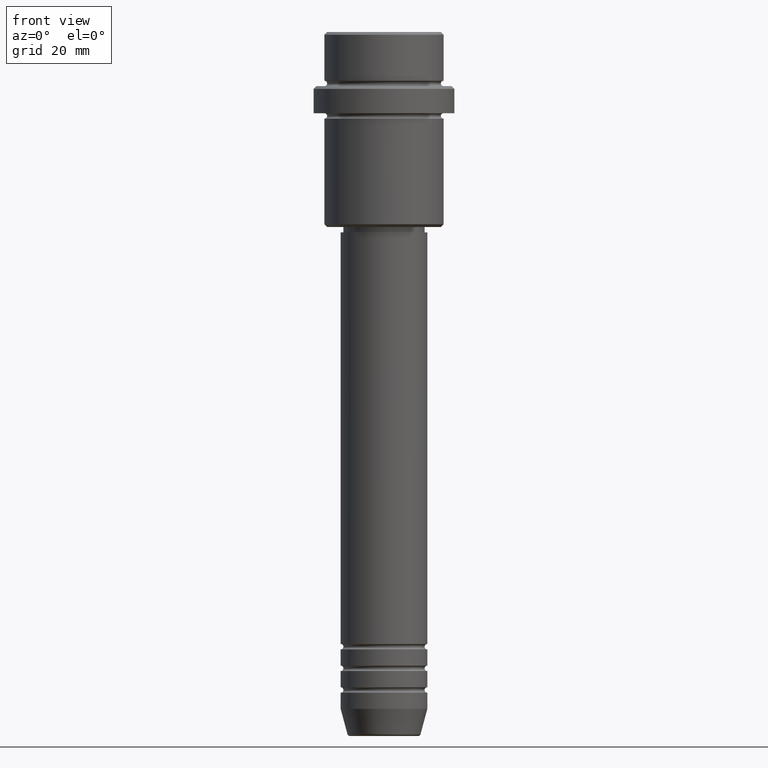
[diagram: clean part render]
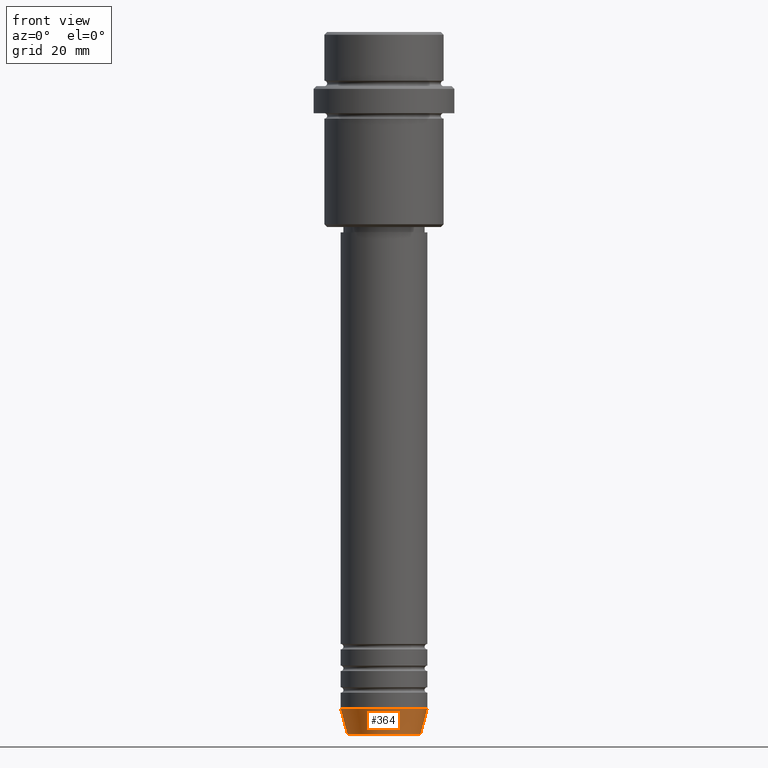
[diagram: same view with one face highlighted and labeled with its STEP entity id]
A machine part, front view. The second image highlights one B-rep face of the part: STEP entity #364.
In plain terms, the highlighted conical surface has half-angle 15 deg.
Its self-contained STEP definition (entity closure, byte-faithful):
#3 = EDGE_CURVE ( 'NONE', #440, #458, #1077, .T. ) ;
#8 = DIRECTION ( 'NONE',  ( 1.000000000000000000, 0.000000000000000000, 0.000000000000000000 ) ) ;
#38 = CIRCLE ( 'NONE', #1355, 6.759553456999433330 ) ;
#65 = FACE_OUTER_BOUND ( 'NONE', #418, .T. ) ;
#111 = DIRECTION ( 'NONE',  ( -0.000000000000000000, -0.000000000000000000, 1.000000000000000000 ) ) ;
#132 = DIRECTION ( 'NONE',  ( -0.000000000000000000, -0.000000000000000000, 1.000000000000000000 ) ) ;
#142 = CARTESIAN_POINT ( 'NONE',  ( -6.759553456999433330, 9.037619948979304241E-16, -129.6294095225512422 ) ) ;
#261 = AXIS2_PLACEMENT_3D ( 'NONE', #511, #1276, #289 ) ;
#275 = EDGE_CURVE ( 'NONE', #624, #1170, #1033, .T. ) ;
#289 = DIRECTION ( 'NONE',  ( 1.000000000000000000, 0.000000000000000000, 0.000000000000000000 ) ) ;
#364 = ADVANCED_FACE ( 'NONE', ( #65 ), #447, .T. ) ;
#414 = CARTESIAN_POINT ( 'NONE',  ( -8.000000000000000000, 9.797174393178825657E-16, -125.0000000000000000 ) ) ;
#418 = EDGE_LOOP ( 'NONE', ( #663, #739, #752, #1176 ) ) ;
#440 = VERTEX_POINT ( 'NONE', #142 ) ;
#447 = CONICAL_SURFACE ( 'NONE', #261, 8.000000000000000000, 0.2617993877991500740 ) ;
#458 = VERTEX_POINT ( 'NONE', #1304 ) ;
#511 = CARTESIAN_POINT ( 'NONE',  ( 0.000000000000000000, 0.000000000000000000, -125.0000000000000000 ) ) ;
#583 = AXIS2_PLACEMENT_3D ( 'NONE', #1090, #111, #8 ) ;
#593 = CARTESIAN_POINT ( 'NONE',  ( 8.000000000000000000, 0.000000000000000000, -125.0000000000000000 ) ) ;
#600 = CARTESIAN_POINT ( 'NONE',  ( 6.759553456999433330, 0.000000000000000000, -129.6294095225512422 ) ) ;
#624 = VERTEX_POINT ( 'NONE', #600 ) ;
#663 = ORIENTED_EDGE ( 'NONE', *, *, #3, .F. ) ;
#688 = CARTESIAN_POINT ( 'NONE',  ( 0.000000000000000000, 0.000000000000000000, -129.6294095225512422 ) ) ;
#703 = EDGE_CURVE ( 'NONE', #458, #1170, #816, .T. ) ;
#739 = ORIENTED_EDGE ( 'NONE', *, *, #1051, .T. ) ;
#752 = ORIENTED_EDGE ( 'NONE', *, *, #275, .T. ) ;
#816 = CIRCLE ( 'NONE', #583, 8.000000000000000000 ) ;
#936 = CARTESIAN_POINT ( 'NONE',  ( 8.000000000000000000, 0.000000000000000000, -125.0000000000000000 ) ) ;
#1033 = LINE ( 'NONE', #936, #1282 ) ;
#1051 = EDGE_CURVE ( 'NONE', #440, #624, #38, .T. ) ;
#1070 = DIRECTION ( 'NONE',  ( -0.2588190451025213501, 3.169619151431772337E-17, 0.9659258262890680902 ) ) ;
#1077 = LINE ( 'NONE', #414, #1369 ) ;
#1090 = CARTESIAN_POINT ( 'NONE',  ( 0.000000000000000000, 0.000000000000000000, -125.0000000000000000 ) ) ;
#1142 = DIRECTION ( 'NONE',  ( 0.2588190451025213501, 0.000000000000000000, 0.9659258262890680902 ) ) ;
#1170 = VERTEX_POINT ( 'NONE', #593 ) ;
#1176 = ORIENTED_EDGE ( 'NONE', *, *, #703, .F. ) ;
#1242 = DIRECTION ( 'NONE',  ( 1.000000000000000000, 0.000000000000000000, 0.000000000000000000 ) ) ;
#1276 = DIRECTION ( 'NONE',  ( -0.000000000000000000, -0.000000000000000000, 1.000000000000000000 ) ) ;
#1282 = VECTOR ( 'NONE', #1142, 1000.000000000000000 ) ;
#1304 = CARTESIAN_POINT ( 'NONE',  ( -8.000000000000000000, 9.797174393178825657E-16, -125.0000000000000000 ) ) ;
#1355 = AXIS2_PLACEMENT_3D ( 'NONE', #688, #132, #1242 ) ;
#1369 = VECTOR ( 'NONE', #1070, 1000.000000000000000 ) ;